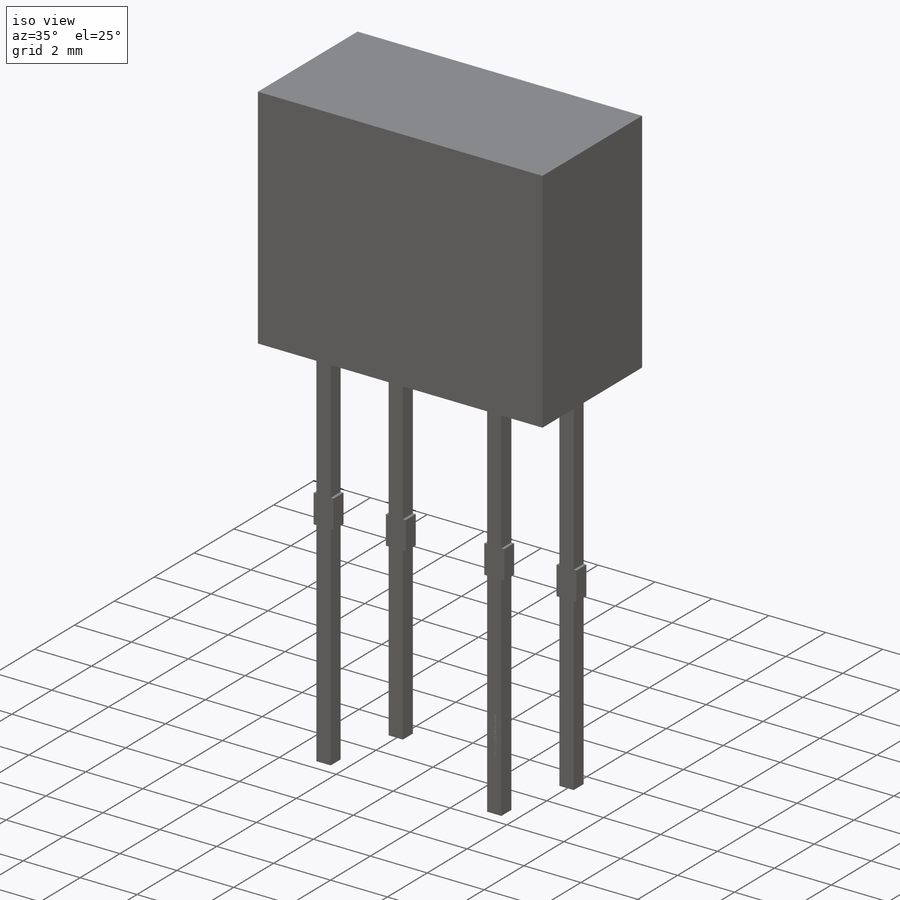
[diagram: iso view]
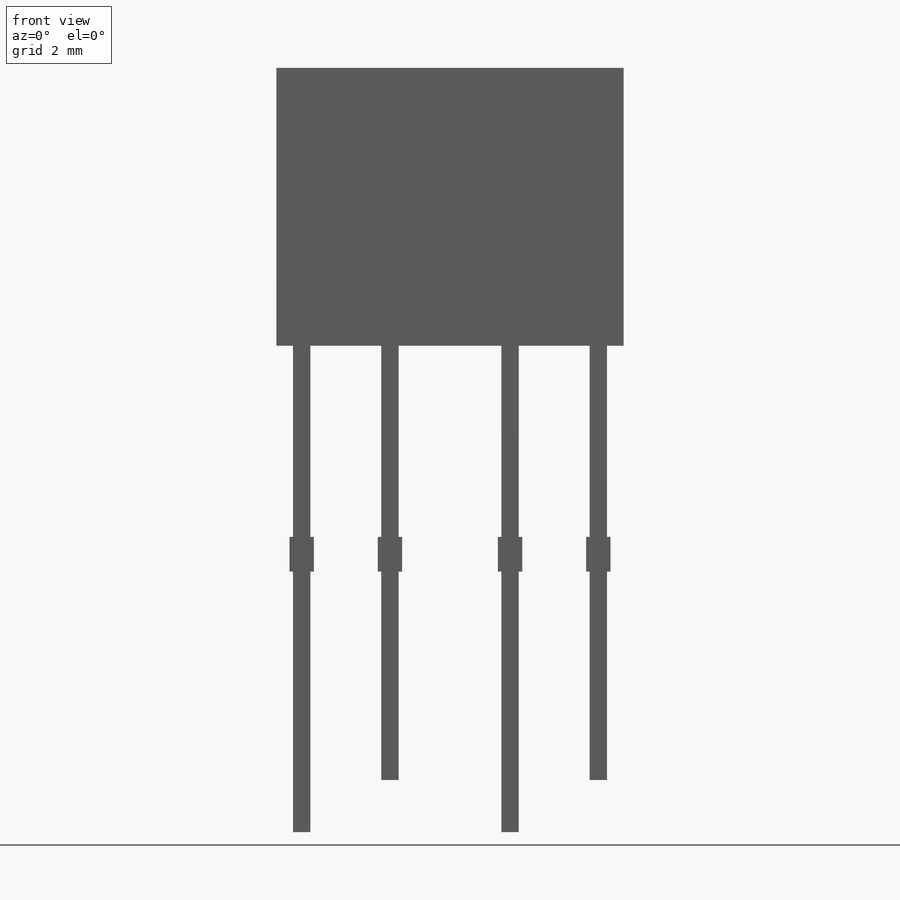
[diagram: front view]
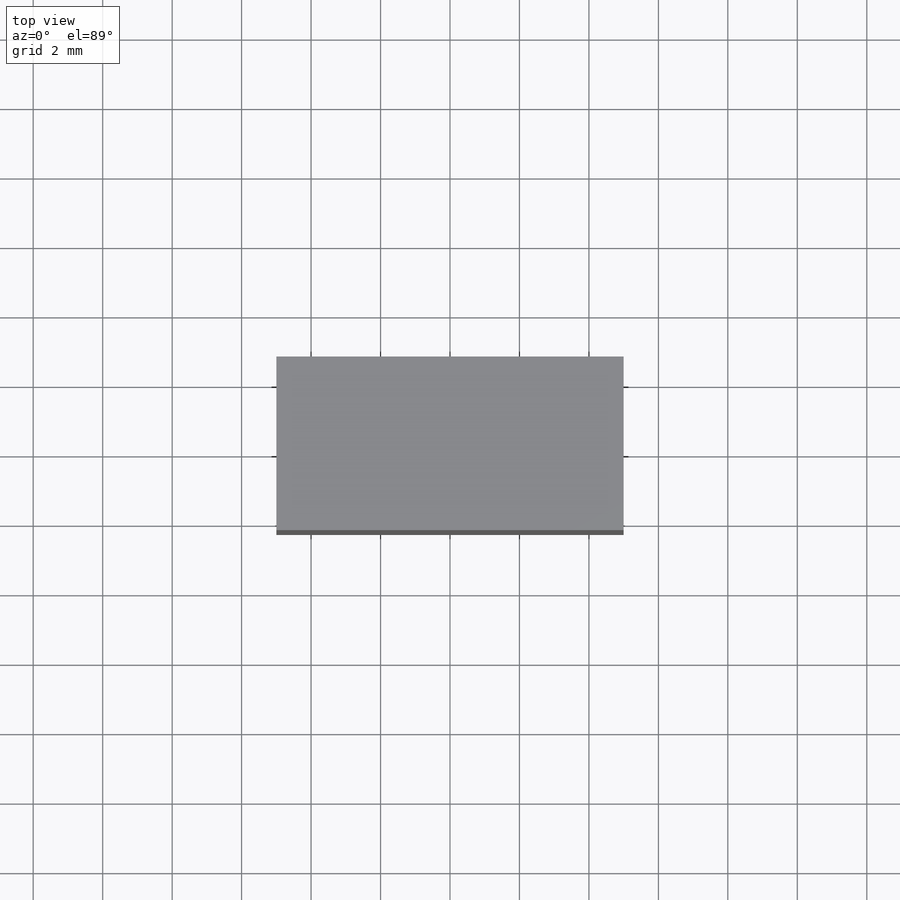
[diagram: top view]
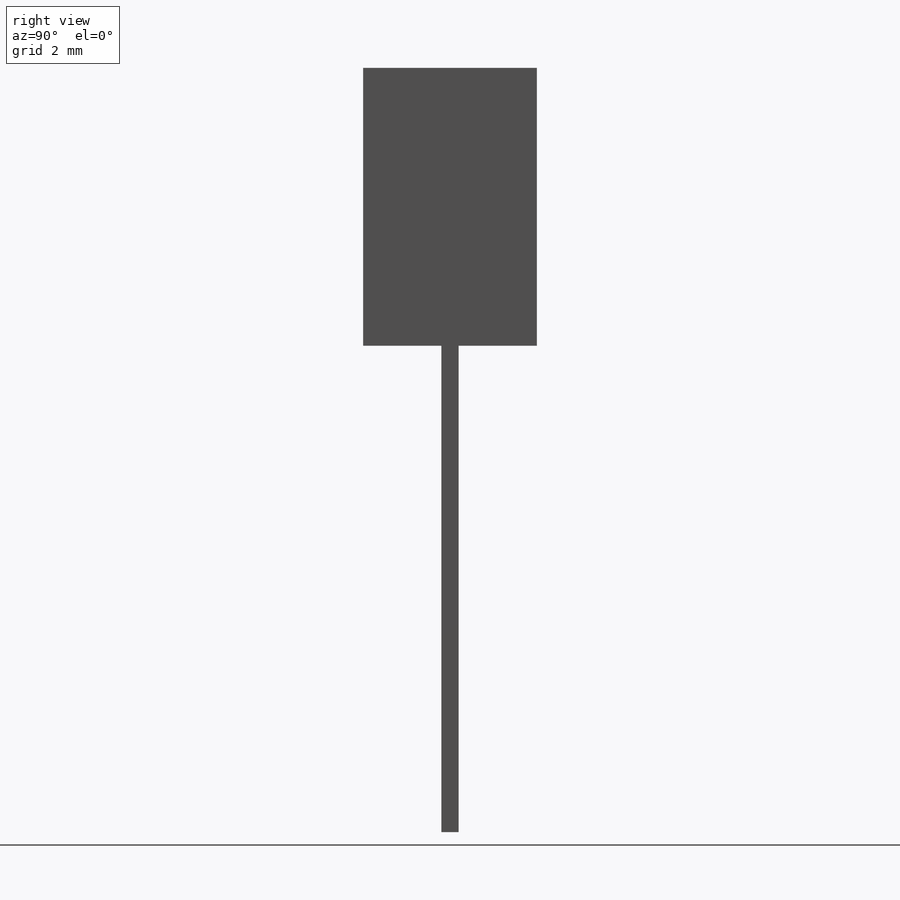
[diagram: right view]
SOLIDWORKS PART (.sldprt)
format: sldprt  version: not decoded by parser v0  size: 621,568 bytes
history: native  units: mm
features: sketch x3, extrude x2, material x1, cut_extrude x1 (+11 scaffold rows collapsed)
feature tree (18):
  scaffold x11  (default folders/planes/origin — collapsed)
  material  "Material <not specified>"
  sketch  "Sketch1"  dims[D1=8.0mm D2=10.0mm D3=0.5mm D4=14.0mm D5=1.5mm D6=6.0mm D7=2.54mm D8=2.54mm D9=0.7mm D10=1.0mm D11=13.5mm]
  extrude  "Extrude1"  Depth=5mm
  extrude  "Extrude2"  [1 undecoded]
  sketch  "Sketch1<3>"  dims[D1=0.5mm]
  sketch  "Sketch2"  dims[D1=5.0mm]
  cut_extrude  "Cut-Extrude1"  Depth=0.01mm
decode coverage: 5 of 6 modeling features carry decoded parameters
note: 1 parameter value undecoded
note: suppression state not decoded; provenance and decode notes live in map.json
